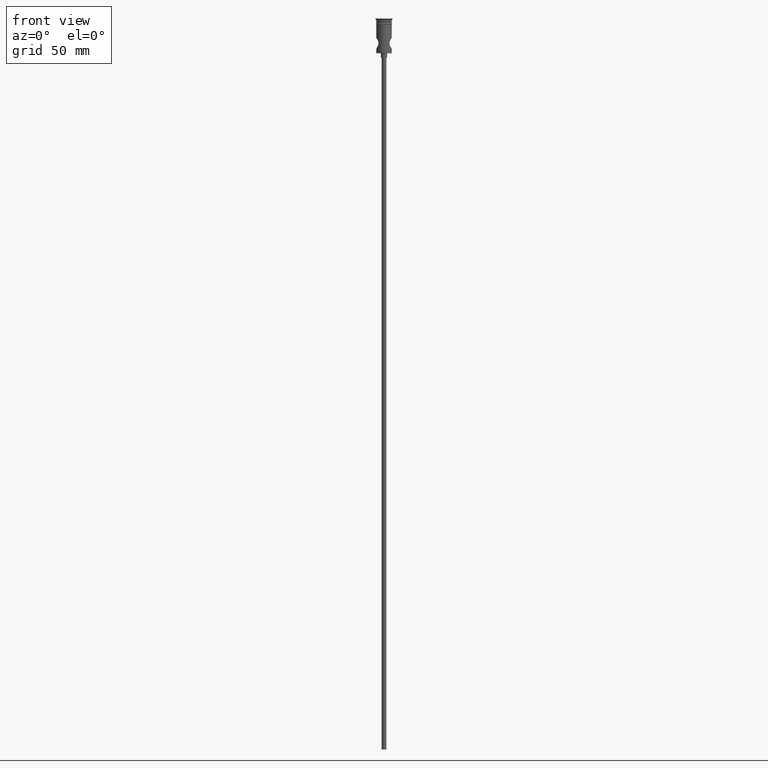
[diagram: clean part render]
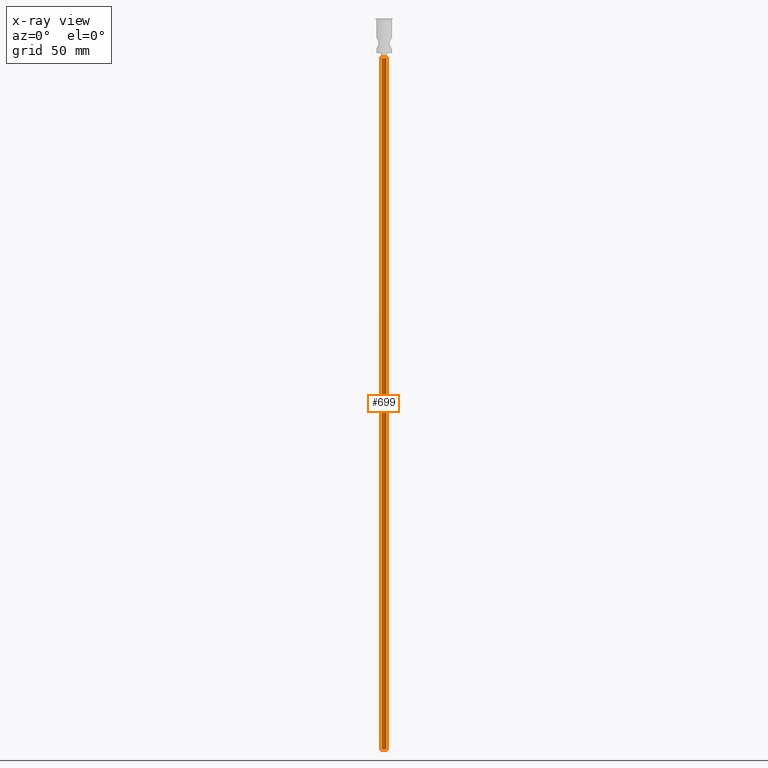
[diagram: x-ray — body ghosted, one internal face saturated and labeled with its STEP entity id]
A machine part, front view, then the same camera in x-ray: the body is ghosted and one INTERNAL B-rep face — a face not visible from any outside direction — is saturated and labeled: STEP entity #699.
In plain terms, the highlighted cylindrical surface (edge-blend (fillet) strip) has radius 1.5 mm, axis along (-0, -0, 1).
Its self-contained STEP definition (entity closure, byte-faithful):
#29 = ORIENTED_EDGE ( 'NONE', *, *, #1319, .T. ) ;
#79 = DIRECTION ( 'NONE',  ( -0.000000000000000000, -0.000000000000000000, 1.000000000000000000 ) ) ;
#90 = AXIS2_PLACEMENT_3D ( 'NONE', #1399, #1174, #963 ) ;
#120 = FACE_OUTER_BOUND ( 'NONE', #411, .T. ) ;
#134 = VECTOR ( 'NONE', #1142, 1000.000000000000000 ) ;
#231 = EDGE_CURVE ( 'NONE', #1271, #1287, #685, .T. ) ;
#233 = CIRCLE ( 'NONE', #1034, 1.500000000000000222 ) ;
#248 = DIRECTION ( 'NONE',  ( -1.000000000000000000, 0.000000000000000000, 0.000000000000000000 ) ) ;
#274 = CARTESIAN_POINT ( 'NONE',  ( 1.500000000000000222, 0.000000000000000000, -25.50000000000000000 ) ) ;
#374 = VECTOR ( 'NONE', #79, 1000.000000000000000 ) ;
#382 = CARTESIAN_POINT ( 'NONE',  ( 0.000000000000000000, 0.000000000000000000, -472.5000000000000568 ) ) ;
#400 = ORIENTED_EDGE ( 'NONE', *, *, #864, .T. ) ;
#411 = EDGE_LOOP ( 'NONE', ( #853, #29, #400, #720 ) ) ;
#420 = CIRCLE ( 'NONE', #1414, 1.500000000000000222 ) ;
#614 = CARTESIAN_POINT ( 'NONE',  ( 0.000000000000000000, 0.000000000000000000, -25.50000000000000000 ) ) ;
#682 = VERTEX_POINT ( 'NONE', #1415 ) ;
#685 = LINE ( 'NONE', #1028, #134 ) ;
#699 = ADVANCED_FACE ( 'NONE', ( #120 ), #955, .T. ) ;
#720 = ORIENTED_EDGE ( 'NONE', *, *, #231, .F. ) ;
#853 = ORIENTED_EDGE ( 'NONE', *, *, #1140, .F. ) ;
#864 = EDGE_CURVE ( 'NONE', #682, #1287, #233, .T. ) ;
#955 = CYLINDRICAL_SURFACE ( 'NONE', #90, 1.500000000000000222 ) ;
#963 = DIRECTION ( 'NONE',  ( 1.000000000000000000, 0.000000000000000000, 0.000000000000000000 ) ) ;
#1028 = CARTESIAN_POINT ( 'NONE',  ( 1.500000000000000222, 0.000000000000000000, -472.5000000000000568 ) ) ;
#1034 = AXIS2_PLACEMENT_3D ( 'NONE', #614, #1062, #1386 ) ;
#1042 = CARTESIAN_POINT ( 'NONE',  ( -1.500000000000000222, 1.836970198721030181E-16, -472.5000000000000568 ) ) ;
#1044 = VERTEX_POINT ( 'NONE', #1262 ) ;
#1062 = DIRECTION ( 'NONE',  ( 0.000000000000000000, 0.000000000000000000, -1.000000000000000000 ) ) ;
#1140 = EDGE_CURVE ( 'NONE', #1044, #1271, #420, .T. ) ;
#1142 = DIRECTION ( 'NONE',  ( -0.000000000000000000, -0.000000000000000000, 1.000000000000000000 ) ) ;
#1144 = DIRECTION ( 'NONE',  ( 0.000000000000000000, 0.000000000000000000, -1.000000000000000000 ) ) ;
#1174 = DIRECTION ( 'NONE',  ( -0.000000000000000000, -0.000000000000000000, 1.000000000000000000 ) ) ;
#1262 = CARTESIAN_POINT ( 'NONE',  ( -1.500000000000000222, 1.836970198721030181E-16, -472.5000000000000568 ) ) ;
#1271 = VERTEX_POINT ( 'NONE', #1303 ) ;
#1287 = VERTEX_POINT ( 'NONE', #274 ) ;
#1303 = CARTESIAN_POINT ( 'NONE',  ( 1.500000000000000222, 0.000000000000000000, -472.5000000000000568 ) ) ;
#1319 = EDGE_CURVE ( 'NONE', #1044, #682, #1402, .T. ) ;
#1386 = DIRECTION ( 'NONE',  ( -1.000000000000000000, 0.000000000000000000, 0.000000000000000000 ) ) ;
#1399 = CARTESIAN_POINT ( 'NONE',  ( 0.000000000000000000, 0.000000000000000000, -472.5000000000000568 ) ) ;
#1402 = LINE ( 'NONE', #1042, #374 ) ;
#1414 = AXIS2_PLACEMENT_3D ( 'NONE', #382, #1144, #248 ) ;
#1415 = CARTESIAN_POINT ( 'NONE',  ( -1.500000000000000222, 1.836970198721030181E-16, -25.50000000000000000 ) ) ;